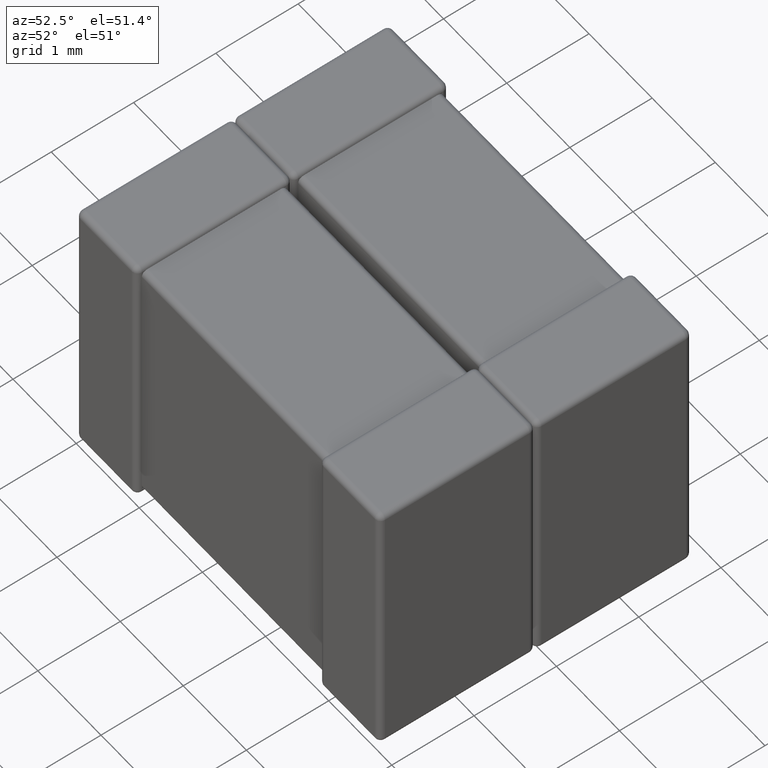
[diagram: clean part render]
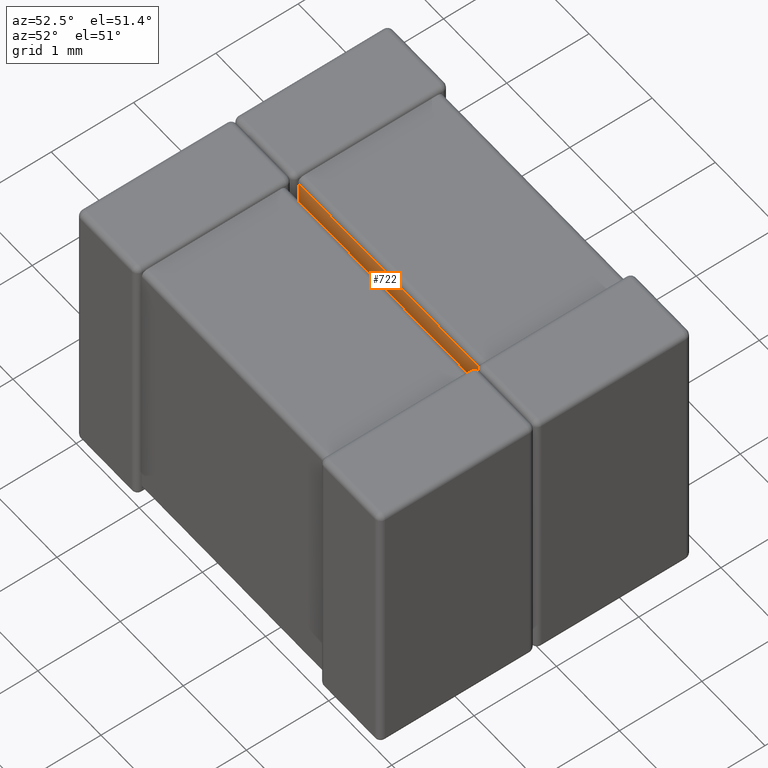
[diagram: same view with one face highlighted and labeled with its STEP entity id]
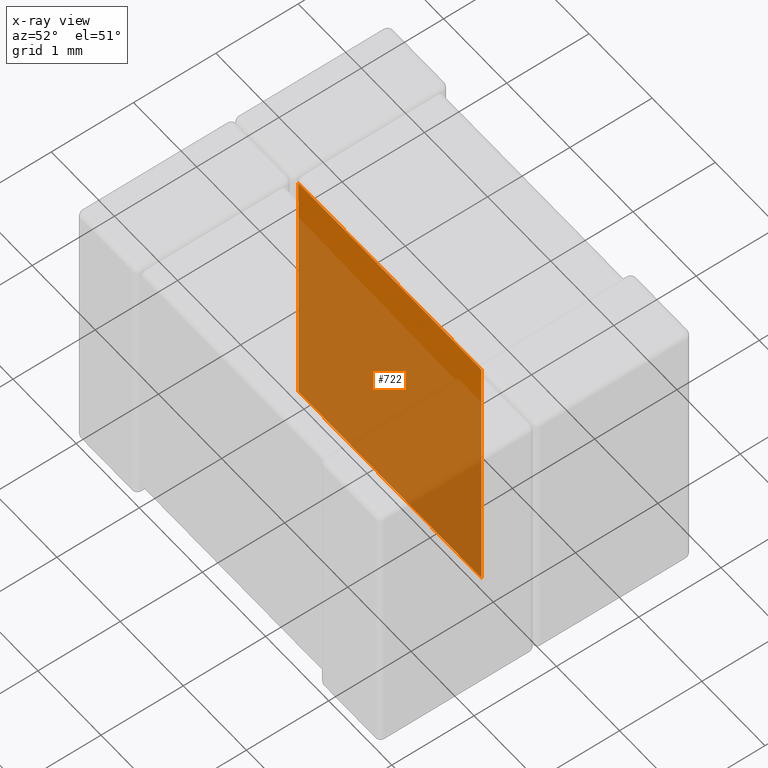
[diagram: x-ray of the same camera — body ghosted, the highlighted face saturated]
A machine part, auxiliary view. The second image highlights one B-rep face of the part: STEP entity #722.
The next image is the same camera in x-ray: the body ghosted, the highlighted face saturated — about 83% of this face is hidden behind the body in this view.
In plain terms, the highlighted planar face has unit normal (0, 1, 0).
Its self-contained STEP definition (entity closure, byte-faithful):
#2 = EDGE_CURVE ( 'NONE', #1856, #808, #6421, .T. ) ;
#136 = DIRECTION ( 'NONE',  ( 1.000000000000000000, 0.000000000000000000, 2.990902544787600071E-16 ) ) ;
#246 = CARTESIAN_POINT ( 'NONE',  ( 3.849999999999999645, 1.969999999999999973, -3.500000000000000000 ) ) ;
#383 = ORIENTED_EDGE ( 'NONE', *, *, #2466, .F. ) ;
#620 = VECTOR ( 'NONE', #3677, 1000.000000000000000 ) ;
#722 = ADVANCED_FACE ( 'NONE', ( #5231 ), #1806, .F. ) ;
#808 = VERTEX_POINT ( 'NONE', #5424 ) ;
#1177 = AXIS2_PLACEMENT_3D ( 'NONE', #3966, #4078, #1847 ) ;
#1261 = LINE ( 'NONE', #3544, #5067 ) ;
#1327 = DIRECTION ( 'NONE',  ( -1.000000000000000000, -0.000000000000000000, 2.990902544787600071E-16 ) ) ;
#1405 = EDGE_LOOP ( 'NONE', ( #6784, #2245, #383, #4759 ) ) ;
#1806 = PLANE ( 'NONE',  #1177 ) ;
#1847 = DIRECTION ( 'NONE',  ( 0.000000000000000000, 0.000000000000000000, -1.000000000000000000 ) ) ;
#1856 = VERTEX_POINT ( 'NONE', #6651 ) ;
#2245 = ORIENTED_EDGE ( 'NONE', *, *, #4952, .F. ) ;
#2382 = VECTOR ( 'NONE', #1327, 1000.000000000000000 ) ;
#2466 = EDGE_CURVE ( 'NONE', #808, #5624, #6669, .T. ) ;
#3067 = EDGE_CURVE ( 'NONE', #1856, #6088, #4836, .T. ) ;
#3235 = CARTESIAN_POINT ( 'NONE',  ( 0.9499999999999999556, 1.969999999999999973, -0.1400000000000012346 ) ) ;
#3544 = CARTESIAN_POINT ( 'NONE',  ( 3.849999999999999201, 1.969999999999999973, -0.1400000000000003741 ) ) ;
#3677 = DIRECTION ( 'NONE',  ( 0.000000000000000000, 0.000000000000000000, 1.000000000000000000 ) ) ;
#3890 = CARTESIAN_POINT ( 'NONE',  ( 0.9499999999999999556, 1.969999999999999973, -3.500000000000000000 ) ) ;
#3966 = CARTESIAN_POINT ( 'NONE',  ( 0.9499999999999999556, 1.969999999999999973, -3.500000000000000000 ) ) ;
#4078 = DIRECTION ( 'NONE',  ( 0.000000000000000000, 1.000000000000000000, 0.000000000000000000 ) ) ;
#4759 = ORIENTED_EDGE ( 'NONE', *, *, #2, .F. ) ;
#4836 = LINE ( 'NONE', #246, #620 ) ;
#4952 = EDGE_CURVE ( 'NONE', #5624, #6088, #1261, .T. ) ;
#5067 = VECTOR ( 'NONE', #136, 1000.000000000000000 ) ;
#5231 = FACE_OUTER_BOUND ( 'NONE', #1405, .T. ) ;
#5328 = VECTOR ( 'NONE', #5634, 1000.000000000000000 ) ;
#5424 = CARTESIAN_POINT ( 'NONE',  ( 0.9499999999999999556, 1.969999999999999973, -3.359999999999998987 ) ) ;
#5624 = VERTEX_POINT ( 'NONE', #3235 ) ;
#5634 = DIRECTION ( 'NONE',  ( 0.000000000000000000, 0.000000000000000000, 1.000000000000000000 ) ) ;
#5678 = CARTESIAN_POINT ( 'NONE',  ( 0.9499999999999999556, 1.969999999999999973, -3.359999999999998987 ) ) ;
#5740 = CARTESIAN_POINT ( 'NONE',  ( 3.849999999999999645, 1.969999999999999973, -0.1400000000000003741 ) ) ;
#6088 = VERTEX_POINT ( 'NONE', #5740 ) ;
#6421 = LINE ( 'NONE', #5678, #2382 ) ;
#6651 = CARTESIAN_POINT ( 'NONE',  ( 3.849999999999999645, 1.969999999999999973, -3.359999999999999876 ) ) ;
#6669 = LINE ( 'NONE', #3890, #5328 ) ;
#6784 = ORIENTED_EDGE ( 'NONE', *, *, #3067, .T. ) ;